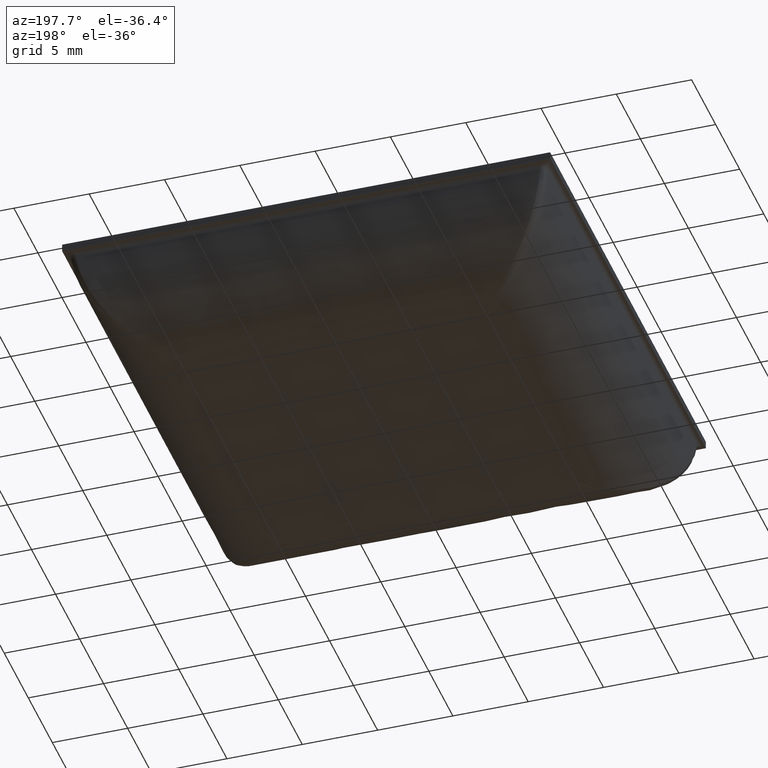
[diagram: clean part render]
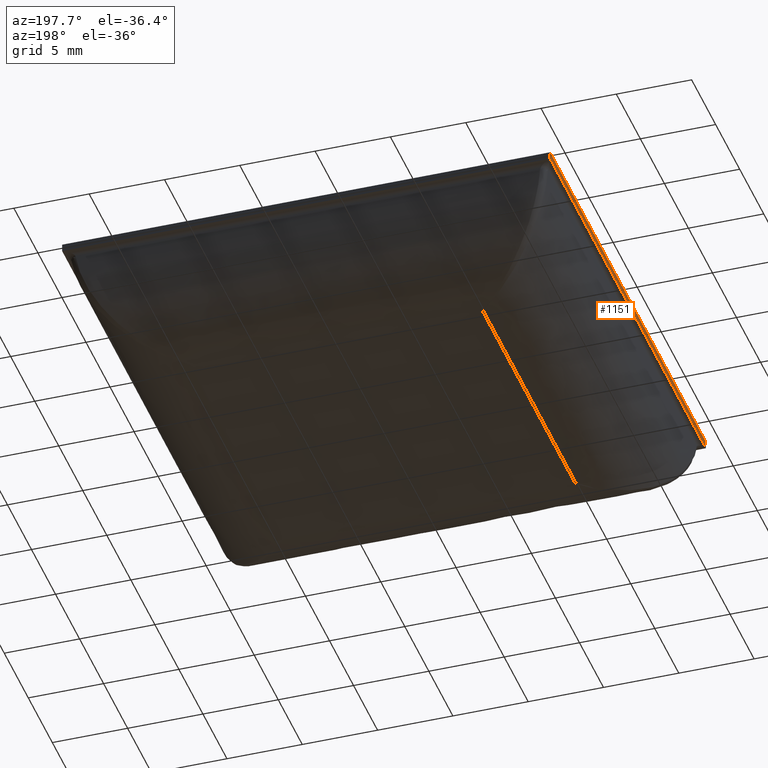
[diagram: same view with one face highlighted and labeled with its STEP entity id]
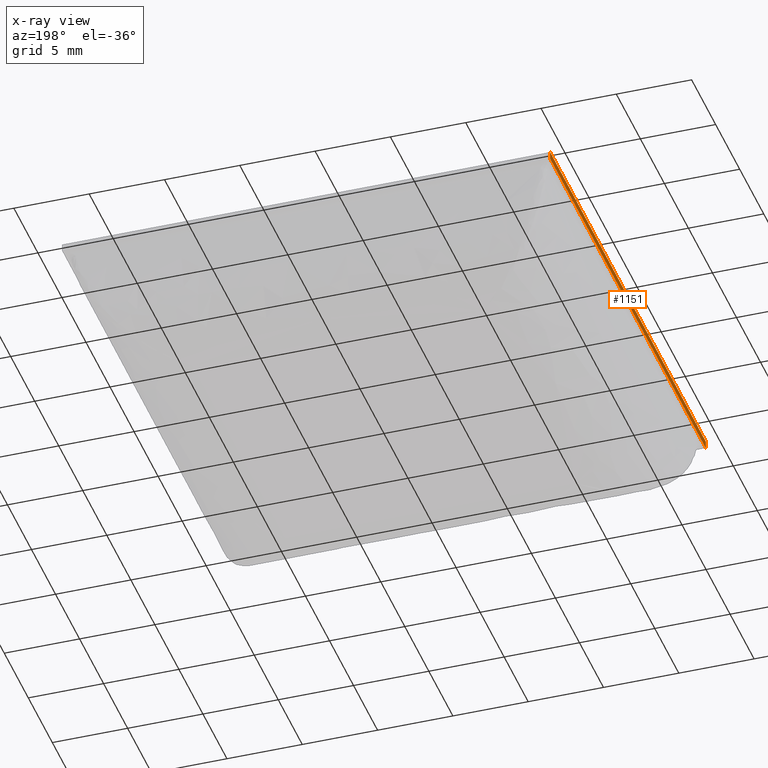
[diagram: x-ray of the same camera — body ghosted, the highlighted face saturated]
A machine part, auxiliary view. The second image highlights one B-rep face of the part: STEP entity #1151.
The next image is the same camera in x-ray: the body ghosted, the highlighted face saturated — about 0% of this face is hidden behind the body in this view.
In plain terms, the highlighted face is a freeform B-spline surface patch.
Its self-contained STEP definition (entity closure, byte-faithful):
#520=CARTESIAN_POINT('',(-16.199999999999999,-16.187204364301301,5.899999999999889));
#521=VERTEX_POINT('',#520);
#522=CARTESIAN_POINT('',(-16.199999999999999,-16.199999999999999,5.900068254402041));
#523=VERTEX_POINT('',#522);
#524=CARTESIAN_POINT('',(-16.199999999999999,-16.187204364301351,5.899999999999889));
#525=CARTESIAN_POINT('',(-16.199999999999999,-16.191469636880839,5.899999999999889));
#526=CARTESIAN_POINT('',(-16.199999999999999,-16.195734970009731,5.900022764189816));
#527=CARTESIAN_POINT('',(-16.199999999999999,-16.199999999999999,5.900068254402051));
#528=B_SPLINE_CURVE_WITH_KNOTS('',3,(#524,#525,#526,#527),.UNSPECIFIED.,.F.,.U.,(4,4),(5.204170E-017,0.000012795817738),.UNSPECIFIED.);
#529=EDGE_CURVE('',#521,#523,#528,.T.);
#726=CARTESIAN_POINT('',(-16.199999999999999,16.199999999999999,5.900068254402150));
#727=VERTEX_POINT('',#726);
#765=CARTESIAN_POINT('',(-16.199999999999999,16.187204364303302,5.899999999999889));
#766=VERTEX_POINT('',#765);
#780=CARTESIAN_POINT('',(-16.199999999999999,16.199999999999999,5.900068254402150));
#781=CARTESIAN_POINT('',(-16.199999999999999,16.195734970010381,5.900022764189923));
#782=CARTESIAN_POINT('',(-16.199999999999999,16.191469636882140,5.899999999999896));
#783=CARTESIAN_POINT('',(-16.199999999999999,16.187204364303302,5.899999999999889));
#784=B_SPLINE_CURVE_WITH_KNOTS('',3,(#780,#781,#782,#783),.UNSPECIFIED.,.F.,.U.,(4,4),(0.0,0.000012795817737),.UNSPECIFIED.);
#785=EDGE_CURVE('',#727,#766,#784,.T.);
#903=CARTESIAN_POINT('',(-16.199999999999999,-16.187204364301301,5.899999999999889));
#904=CARTESIAN_POINT('',(-16.199999999999999,16.187204364303302,5.899999999999889));
#905=QUASI_UNIFORM_CURVE('',1,(#903,#904),.UNSPECIFIED.,.F.,.U.);
#906=EDGE_CURVE('',#521,#766,#905,.T.);
#1090=CARTESIAN_POINT('',(-16.199999999999999,16.199999999999999,6.400000000000000));
#1091=VERTEX_POINT('',#1090);
#1097=CARTESIAN_POINT('',(-16.199999999999999,-16.199999999999999,6.400000000000000));
#1098=VERTEX_POINT('',#1097);
#1099=CARTESIAN_POINT('',(-16.199999999999999,-16.199999999999999,6.400000000000000));
#1100=CARTESIAN_POINT('',(-16.199999999999999,16.199999999999999,6.400000000000000));
#1101=QUASI_UNIFORM_CURVE('',1,(#1099,#1100),.UNSPECIFIED.,.F.,.U.);
#1102=EDGE_CURVE('',#1098,#1091,#1101,.T.);
#1119=CARTESIAN_POINT('',(-16.199999999999999,16.199999999999999,6.400000000000000));
#1120=CARTESIAN_POINT('',(-16.199999999999999,16.199999999999999,5.900068254402150));
#1121=QUASI_UNIFORM_CURVE('',1,(#1119,#1120),.UNSPECIFIED.,.F.,.U.);
#1122=EDGE_CURVE('',#1091,#727,#1121,.T.);
#1134=CARTESIAN_POINT('',(-16.199999999999999,-17.818380849646569,5.875025095962766));
#1135=CARTESIAN_POINT('',(-16.199999999999999,-17.818380849646569,6.424975082851059));
#1136=CARTESIAN_POINT('',(-16.199999999999999,17.818380849646569,5.875025095962765));
#1137=CARTESIAN_POINT('',(-16.199999999999999,17.818380849646569,6.424975082851059));
#1138=B_SPLINE_SURFACE_WITH_KNOTS('',1,1,((#1134,#1136),(#1135,#1137)),.UNSPECIFIED.,.F.,.F.,.U.,(2,2),(2,2),(0.041708493271470,0.958291804751754),(0.0,35.636761699293132),.UNSPECIFIED.);
#1139=ORIENTED_EDGE('',*,*,#1122,.T.);
#1140=ORIENTED_EDGE('',*,*,#785,.T.);
#1141=ORIENTED_EDGE('',*,*,#906,.F.);
#1142=ORIENTED_EDGE('',*,*,#529,.T.);
#1143=CARTESIAN_POINT('',(-16.199999999999999,-16.199999999999999,6.400000000000000));
#1144=CARTESIAN_POINT('',(-16.199999999999999,-16.199999999999999,5.900068254402041));
#1145=QUASI_UNIFORM_CURVE('',1,(#1143,#1144),.UNSPECIFIED.,.F.,.U.);
#1146=EDGE_CURVE('',#1098,#523,#1145,.T.);
#1147=ORIENTED_EDGE('',*,*,#1146,.F.);
#1148=ORIENTED_EDGE('',*,*,#1102,.T.);
#1149=EDGE_LOOP('',(#1139,#1140,#1141,#1142,#1147,#1148));
#1150=FACE_OUTER_BOUND('',#1149,.T.);
#1151=ADVANCED_FACE('',(#1150),#1138,.T.);